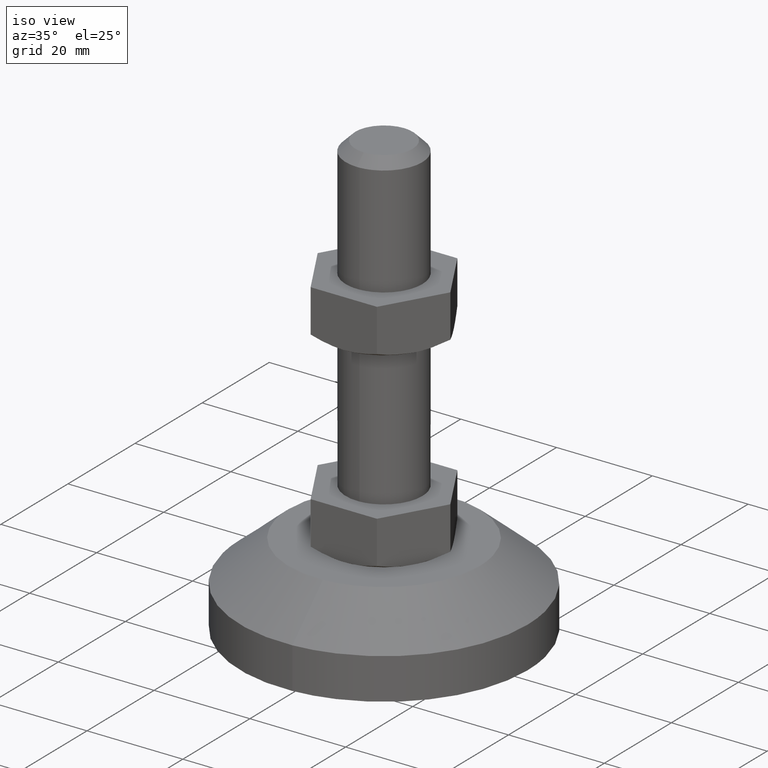
[diagram: clean part render]
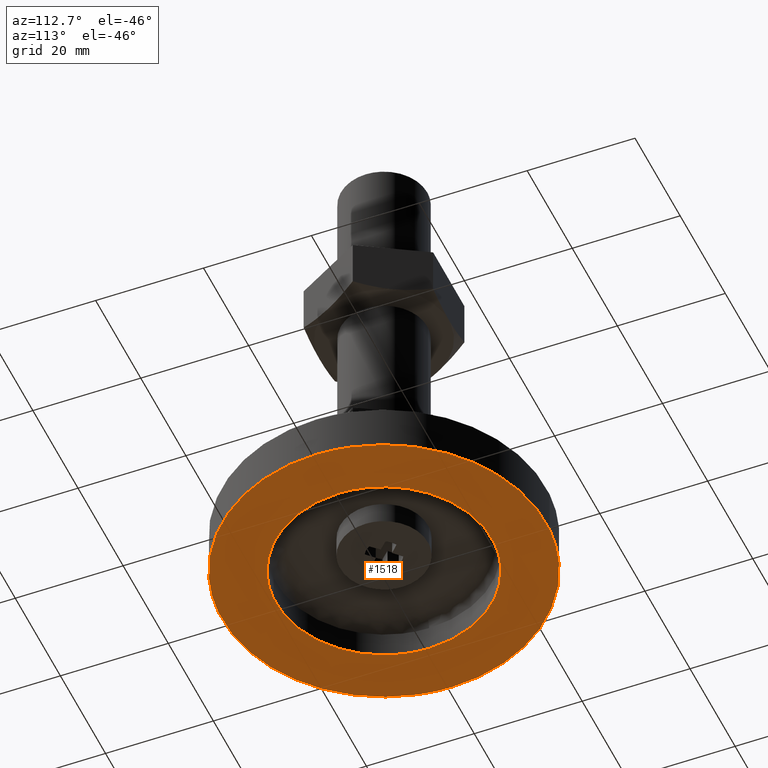
[diagram: tour spotlight — one face highlighted and labeled with its STEP entity id]
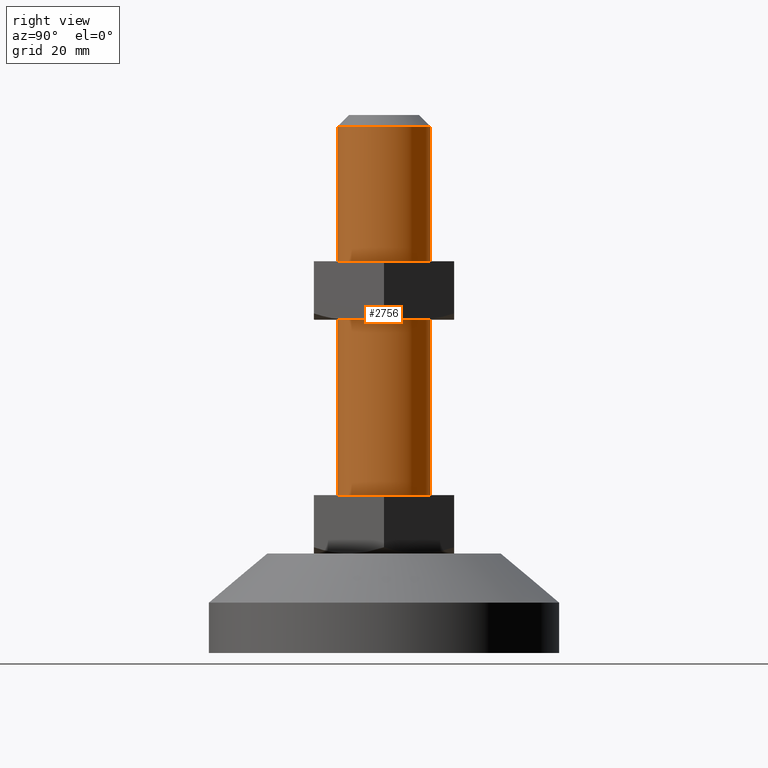
[diagram: tour spotlight — one face highlighted and labeled with its STEP entity id]
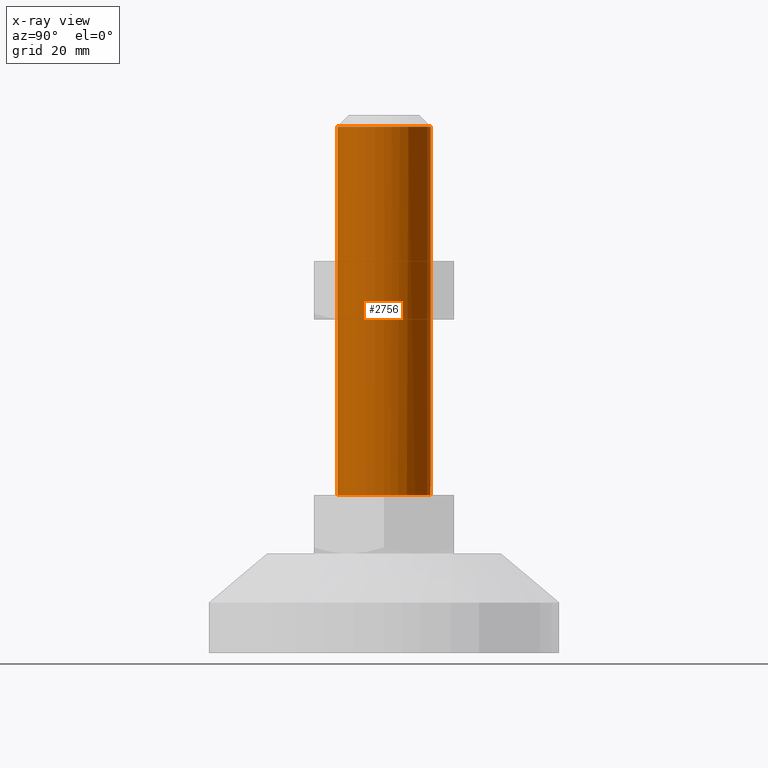
[diagram: x-ray of the same camera — body ghosted, this tour face saturated]
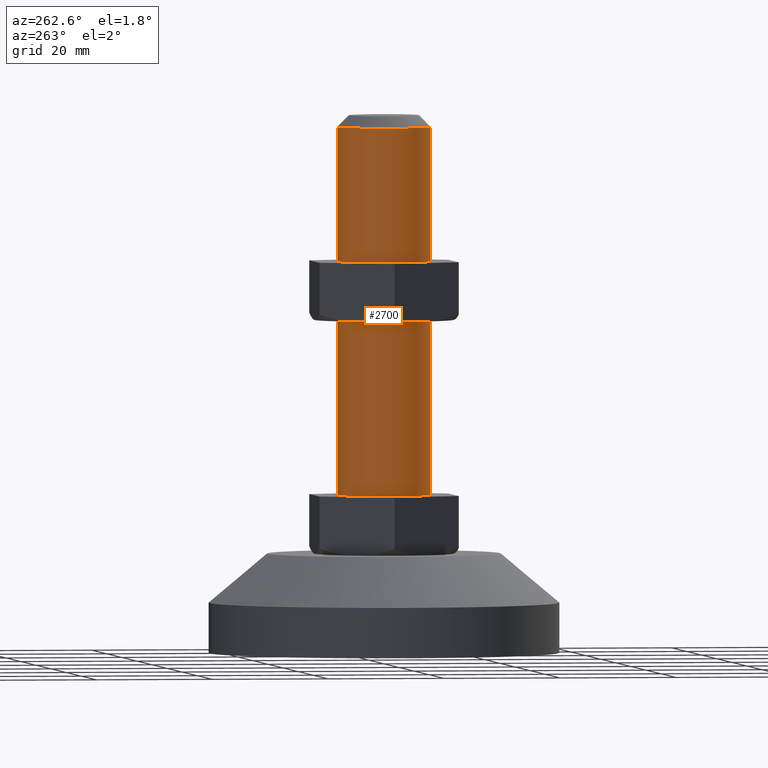
[diagram: tour spotlight — one face highlighted and labeled with its STEP entity id]
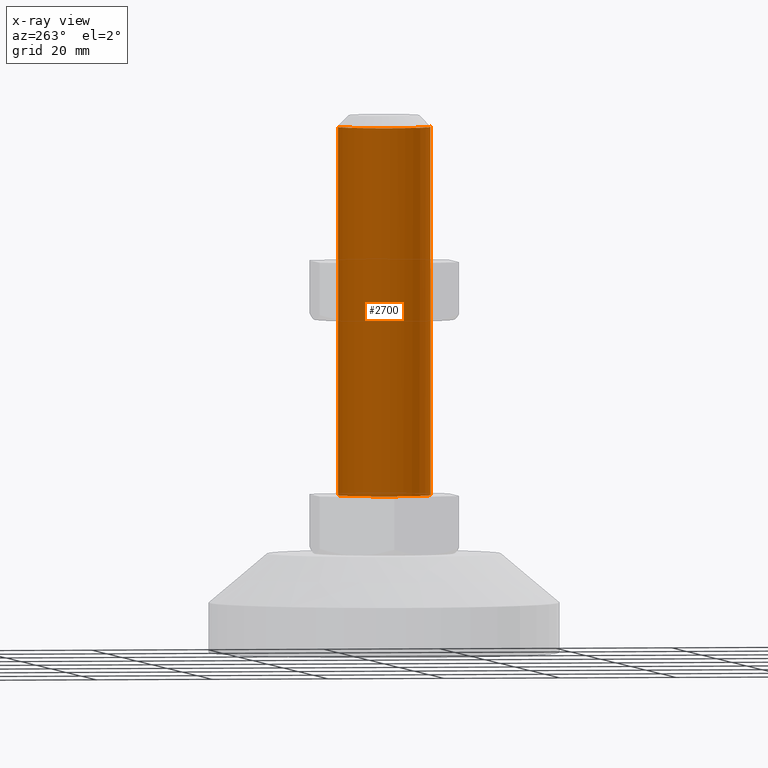
[diagram: x-ray of the same camera — body ghosted, this tour face saturated]
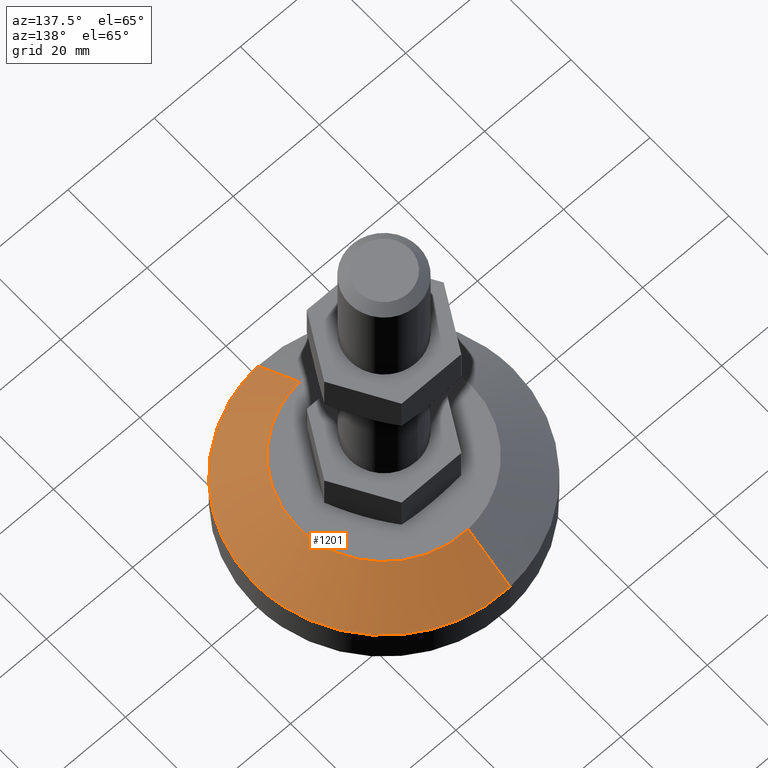
[diagram: tour spotlight — one face highlighted and labeled with its STEP entity id]
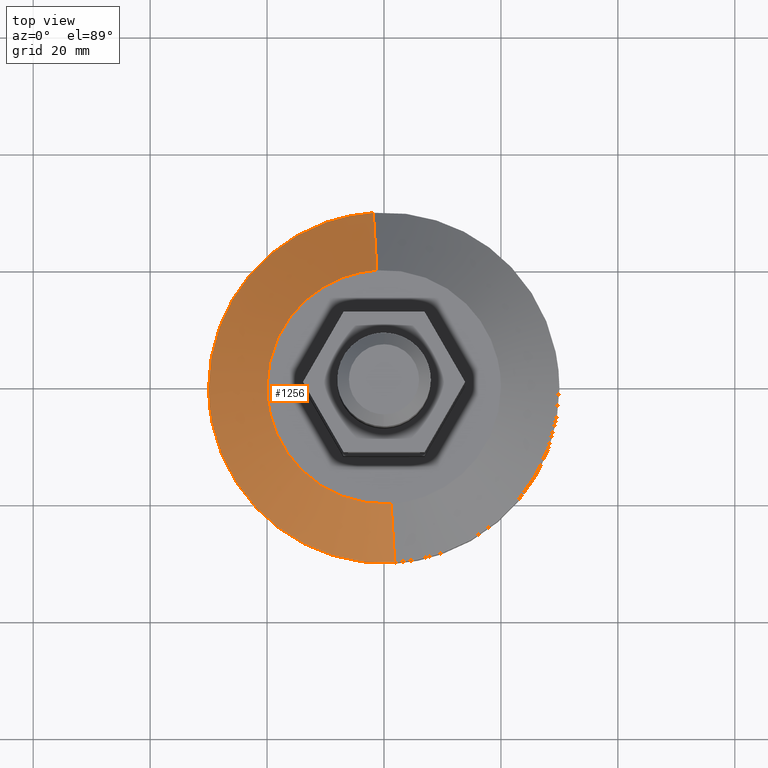
[diagram: tour spotlight — one face highlighted and labeled with its STEP entity id]
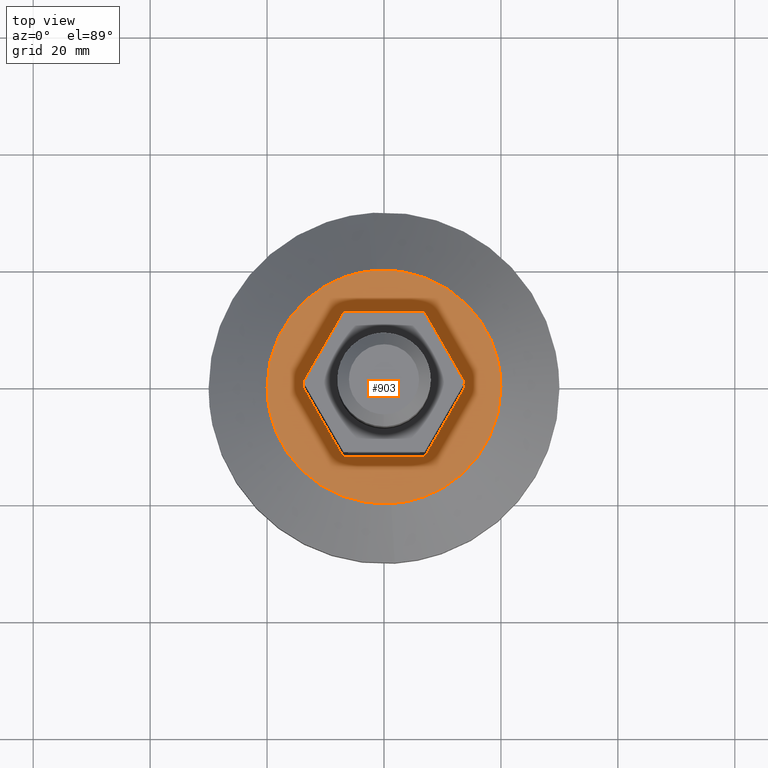
[diagram: tour spotlight — one face highlighted and labeled with its STEP entity id]
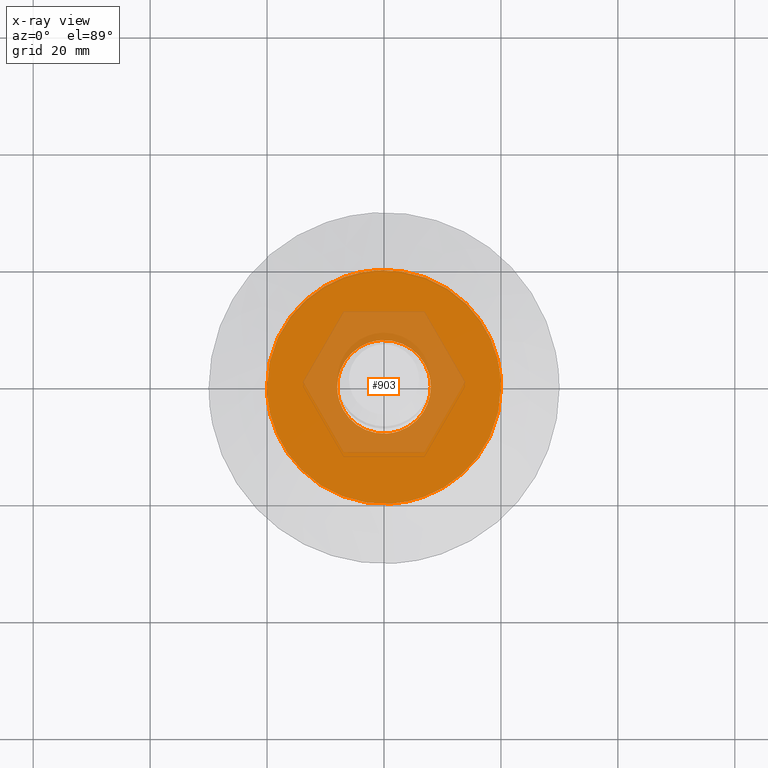
[diagram: x-ray of the same camera — body ghosted, this tour face saturated]
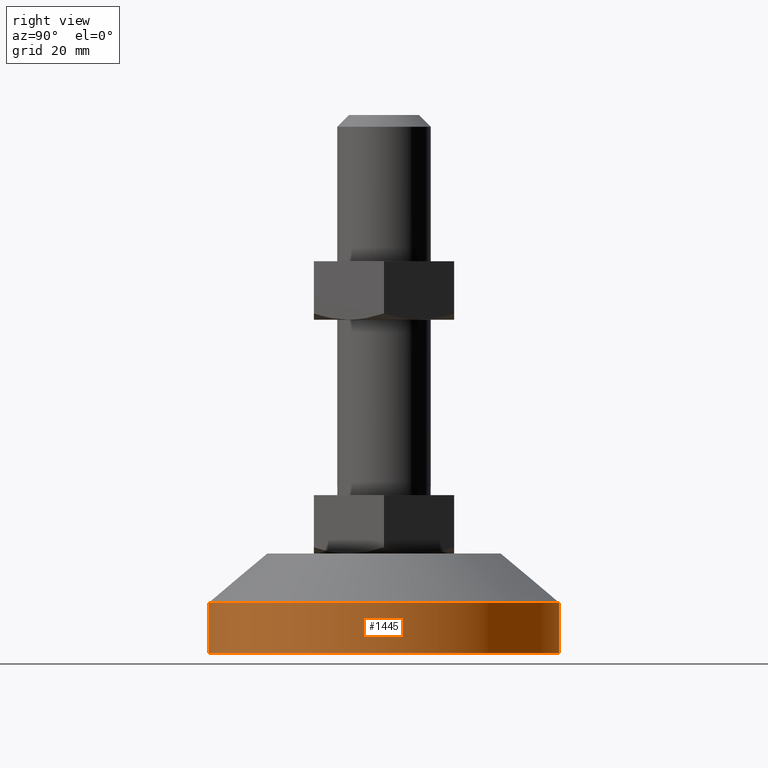
[diagram: tour spotlight — one face highlighted and labeled with its STEP entity id]
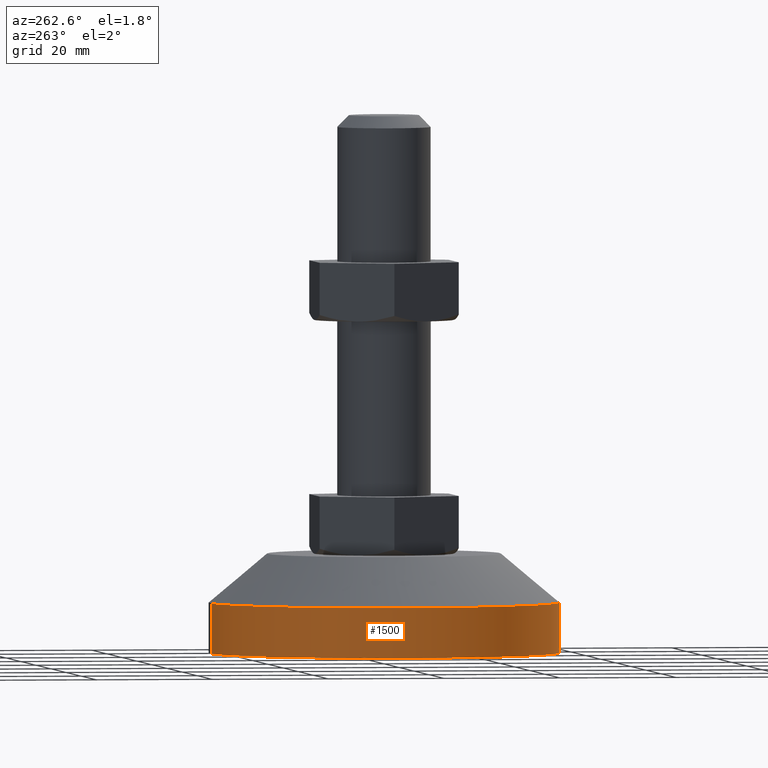
[diagram: tour spotlight — one face highlighted and labeled with its STEP entity id]
A machine part: a face-by-face anatomy tour. The part has 67 B-rep faces; the first image is the clean iso view, then the 8 largest visible faces are spotlighted one at a time (largest first), each with its STEP entity span.

Face 1 — auxiliary view, entity #1518. In plain terms, the highlighted face is a freeform B-spline surface patch.
Definition (entity closure, byte-faithful):
#1276=CARTESIAN_POINT('',(-1.220964780103733,19.962696336059160,-6.938894E-017));
#1277=VERTEX_POINT('',#1276);
#1283=CARTESIAN_POINT('',(20.0,0.0,0.0));
#1284=VERTEX_POINT('',#1283);
#1285=CARTESIAN_POINT('',(-1.220964780103733,19.962696336059157,-6.938894E-017));
#1286=CARTESIAN_POINT('',(-0.611052252248530,19.999999999999098,-6.839178E-017));
#1287=CARTESIAN_POINT('',(5.386542E-014,19.999999999999119,-6.733178E-017));
#1288=CARTESIAN_POINT('',(20.000000000000028,19.999999999999574,-3.263731E-017));
#1289=CARTESIAN_POINT('',(20.0,0.0,0.0));
#1297=(BOUNDED_CURVE()B_SPLINE_CURVE(2,(#1285,#1286,#1287,#1288,#1289),.UNSPECIFIED.,.F.,.U.)B_SPLINE_CURVE_WITH_KNOTS((3,2,3),(0.239333014194302,0.250000000000000,0.500000000000000),.UNSPECIFIED.)CURVE()GEOMETRIC_REPRESENTATION_ITEM()RATIONAL_B_SPLINE_CURVE((0.976072153016967,0.987502848769326,1.0,0.707106781186548,1.0))REPRESENTATION_ITEM(''));
#1298=EDGE_CURVE('',#1277,#1284,#1297,.T.);
#1300=CARTESIAN_POINT('',(1.220964780103731,-19.962696336059160,-6.938894E-017));
#1301=VERTEX_POINT('',#1300);
#1302=CARTESIAN_POINT('',(20.0,0.0,0.0));
#1303=CARTESIAN_POINT('',(19.999999999999968,-18.814127013467427,-3.469447E-017));
#1304=CARTESIAN_POINT('',(1.220964780103731,-19.962696336059157,-6.938894E-017));
#1312=(BOUNDED_CURVE()B_SPLINE_CURVE(2,(#1302,#1303,#1304),.UNSPECIFIED.,.F.,.U.)B_SPLINE_CURVE_WITH_KNOTS((3,3),(0.500000000000000,0.739333014194302),.UNSPECIFIED.)CURVE()GEOMETRIC_REPRESENTATION_ITEM()RATIONAL_B_SPLINE_CURVE((1.0,0.719603932417221,0.976072153016967))REPRESENTATION_ITEM(''));
#1313=EDGE_CURVE('',#1284,#1301,#1312,.T.);
#1345=CARTESIAN_POINT('',(-20.0,0.0,0.0));
#1346=VERTEX_POINT('',#1345);
#1347=CARTESIAN_POINT('',(1.220964780103731,-19.962696336059157,-6.938894E-017));
#1348=CARTESIAN_POINT('',(0.611052252248528,-19.999999999999098,-6.839178E-017));
#1349=CARTESIAN_POINT('',(-5.558912E-014,-19.999999999999119,-6.733178E-017));
#1350=CARTESIAN_POINT('',(-20.000000000000028,-19.999999999999574,-3.263731E-017));
#1351=CARTESIAN_POINT('',(-20.0,0.0,0.0));
#1359=(BOUNDED_CURVE()B_SPLINE_CURVE(2,(#1347,#1348,#1349,#1350,#1351),.UNSPECIFIED.,.F.,.U.)B_SPLINE_CURVE_WITH_KNOTS((3,2,3),(0.739333014194302,0.750000000000000,1.0),.UNSPECIFIED.)CURVE()GEOMETRIC_REPRESENTATION_ITEM()RATIONAL_B_SPLINE_CURVE((0.976072153016967,0.987502848769326,1.0,0.707106781186548,1.0))REPRESENTATION_ITEM(''));
#1360=EDGE_CURVE('',#1301,#1346,#1359,.T.);
#1362=CARTESIAN_POINT('',(-20.0,0.0,0.0));
#1363=CARTESIAN_POINT('',(-19.999999999999968,18.814127013467427,-3.469447E-017));
#1364=CARTESIAN_POINT('',(-1.220964780103733,19.962696336059157,-6.938894E-017));
#1372=(BOUNDED_CURVE()B_SPLINE_CURVE(2,(#1362,#1363,#1364),.UNSPECIFIED.,.F.,.U.)B_SPLINE_CURVE_WITH_KNOTS((3,3),(0.0,0.239333014194302),.UNSPECIFIED.)CURVE()GEOMETRIC_REPRESENTATION_ITEM()RATIONAL_B_SPLINE_CURVE((1.0,0.719603932417221,0.976072153016967))REPRESENTATION_ITEM(''));
#1373=EDGE_CURVE('',#1346,#1277,#1372,.T.);
#1399=CARTESIAN_POINT('',(1.831440223635145,-29.944044928950319,-1.942890E-016));
#1400=VERTEX_POINT('',#1399);
#1406=CARTESIAN_POINT('',(30.0,0.0,0.0));
#1407=VERTEX_POINT('',#1406);
#1408=CARTESIAN_POINT('',(30.0,0.0,0.0));
#1409=CARTESIAN_POINT('',(29.999999999999865,-28.221197079281065,-9.714451E-017));
#1410=CARTESIAN_POINT('',(1.831440223635145,-29.944044928950319,-1.942890E-016));
#1418=(BOUNDED_CURVE()B_SPLINE_CURVE(2,(#1408,#1409,#1410),.UNSPECIFIED.,.F.,.U.)B_SPLINE_CURVE_WITH_KNOTS((3,3),(0.500000000000000,0.739333054222293),.UNSPECIFIED.)CURVE()GEOMETRIC_REPRESENTATION_ITEM()RATIONAL_B_SPLINE_CURVE((1.0,0.719603885521512,0.976072238804626))REPRESENTATION_ITEM(''));
#1419=EDGE_CURVE('',#1407,#1400,#1418,.T.);
#1421=CARTESIAN_POINT('',(-1.831440223635143,29.944044928950319,3.191891E-016));
#1422=VERTEX_POINT('',#1421);
#1423=CARTESIAN_POINT('',(-1.831440223635143,29.944044928950326,3.191891E-016));
#1424=CARTESIAN_POINT('',(-0.916574895373930,29.999999999995804,3.146022E-016));
#1425=CARTESIAN_POINT('',(2.540294E-013,29.999999999995872,3.097262E-016));
#1426=CARTESIAN_POINT('',(30.000000000000121,29.999999999998000,1.501317E-016));
#1427=CARTESIAN_POINT('',(30.0,0.0,0.0));
#1435=(BOUNDED_CURVE()B_SPLINE_CURVE(2,(#1423,#1424,#1425,#1426,#1427),.UNSPECIFIED.,.F.,.U.)B_SPLINE_CURVE_WITH_KNOTS((3,2,3),(0.239333054222293,0.250000000000000,0.500000000000000),.UNSPECIFIED.)CURVE()GEOMETRIC_REPRESENTATION_ITEM()RATIONAL_B_SPLINE_CURVE((0.976072238804626,0.987502895665035,1.0,0.707106781186547,1.0))REPRESENTATION_ITEM(''));
#1436=EDGE_CURVE('',#1422,#1407,#1435,.T.);
#1466=CARTESIAN_POINT('',(-30.0,0.0,0.0));
#1467=VERTEX_POINT('',#1466);
#1468=CARTESIAN_POINT('',(-30.0,0.0,0.0));
#1469=CARTESIAN_POINT('',(-29.999999999999865,28.221197079281065,1.595946E-016));
#1470=CARTESIAN_POINT('',(-1.831440223635143,29.944044928950326,3.191891E-016));
#1478=(BOUNDED_CURVE()B_SPLINE_CURVE(2,(#1468,#1469,#1470),.UNSPECIFIED.,.F.,.U.)B_SPLINE_CURVE_WITH_KNOTS((3,3),(0.0,0.239333054222293),.UNSPECIFIED.)CURVE()GEOMETRIC_REPRESENTATION_ITEM()RATIONAL_B_SPLINE_CURVE((1.0,0.719603885521512,0.976072238804626))REPRESENTATION_ITEM(''));
#1479=EDGE_CURVE('',#1467,#1422,#1478,.T.);
#1481=CARTESIAN_POINT('',(1.831440223635145,-29.944044928950319,-1.942890E-016));
#1482=CARTESIAN_POINT('',(0.916574895373929,-29.999999999995804,-1.914970E-016));
#1483=CARTESIAN_POINT('',(-2.568304E-013,-29.999999999995872,-1.885290E-016));
#1484=CARTESIAN_POINT('',(-30.000000000000121,-29.999999999998000,-9.138448E-017));
#1485=CARTESIAN_POINT('',(-30.0,0.0,0.0));
#1493=(BOUNDED_CURVE()B_SPLINE_CURVE(2,(#1481,#1482,#1483,#1484,#1485),.UNSPECIFIED.,.F.,.U.)B_SPLINE_CURVE_WITH_KNOTS((3,2,3),(0.739333054222293,0.750000000000000,1.0),.UNSPECIFIED.)CURVE()GEOMETRIC_REPRESENTATION_ITEM()RATIONAL_B_SPLINE_CURVE((0.976072238804626,0.987502895665035,1.0,0.707106781186547,1.0))REPRESENTATION_ITEM(''));
#1494=EDGE_CURVE('',#1400,#1467,#1493,.T.);
#1501=CARTESIAN_POINT('',(-32.996999883708362,-32.996261619275792,0.0));
#1502=CARTESIAN_POINT('',(32.997001493033771,-32.996261619275792,0.0));
#1503=CARTESIAN_POINT('',(-32.996999883708362,32.996260546392179,0.0));
#1504=CARTESIAN_POINT('',(32.997001493033771,32.996260546392179,0.0));
#1505=B_SPLINE_SURFACE_WITH_KNOTS('',1,1,((#1501,#1503),(#1502,#1504)),.UNSPECIFIED.,.F.,.F.,.U.,(2,2),(2,2),(0.0,65.994001376742119),(0.0,65.992522165667964),.UNSPECIFIED.);
#1506=ORIENTED_EDGE('',*,*,#1479,.T.);
#1507=ORIENTED_EDGE('',*,*,#1436,.T.);
#1508=ORIENTED_EDGE('',*,*,#1419,.T.);
#1509=ORIENTED_EDGE('',*,*,#1494,.T.);
#1510=EDGE_LOOP('',(#1506,#1507,#1508,#1509));
#1511=FACE_OUTER_BOUND('',#1510,.T.);
#1512=ORIENTED_EDGE('',*,*,#1313,.F.);
#1513=ORIENTED_EDGE('',*,*,#1298,.F.);
#1514=ORIENTED_EDGE('',*,*,#1373,.F.);
#1515=ORIENTED_EDGE('',*,*,#1360,.F.);
#1516=EDGE_LOOP('',(#1512,#1513,#1514,#1515));
#1517=FACE_BOUND('',#1516,.T.);
#1518=ADVANCED_FACE('',(#1511,#1517),#1505,.F.);

Face 2 — right view, entity #2756. An x-ray twin of the same camera follows (body ghosted, this face saturated) — the face is partly hidden behind the body. In plain terms, the highlighted face is a freeform B-spline surface patch.
Definition (entity closure, byte-faithful):
#2539=CARTESIAN_POINT('',(0.069812284496149,7.999695384574755,89.999999999931788));
#2540=VERTEX_POINT('',#2539);
#2546=CARTESIAN_POINT('',(-0.488379432670811,7.985078930709759,90.0));
#2547=VERTEX_POINT('',#2546);
#2548=CARTESIAN_POINT('',(-0.488379432670811,7.985078930709759,90.0));
#2549=CARTESIAN_POINT('',(-0.302561884388627,7.996444371469745,89.999999999977135));
#2550=CARTESIAN_POINT('',(-0.116345268610556,8.001320712760094,89.999999999954738));
#2551=CARTESIAN_POINT('',(0.069812284496149,7.999695384574755,89.999999999931788));
#2552=B_SPLINE_CURVE_WITH_KNOTS('',3,(#2548,#2549,#2550,#2551),.UNSPECIFIED.,.F.,.U.,(4,4),(8.862366E-011,0.558498232983470),.UNSPECIFIED.);
#2553=EDGE_CURVE('',#2547,#2540,#2552,.T.);
#2589=CARTESIAN_POINT('',(0.488379432670811,-7.985078930709759,90.0));
#2590=VERTEX_POINT('',#2589);
#2598=CARTESIAN_POINT('',(8.0,0.0,90.0));
#2599=VERTEX_POINT('',#2598);
#2600=CARTESIAN_POINT('',(8.0,0.0,90.0));
#2601=CARTESIAN_POINT('',(7.999999999999849,-7.525656923372798,90.0));
#2602=CARTESIAN_POINT('',(0.488379432670811,-7.985078930709758,90.0));
#2610=(BOUNDED_CURVE()B_SPLINE_CURVE(2,(#2600,#2601,#2602),.UNSPECIFIED.,.F.,.U.)B_SPLINE_CURVE_WITH_KNOTS((3,3),(0.0,0.239333154204801),.UNSPECIFIED.)CURVE()GEOMETRIC_REPRESENTATION_ITEM()RATIONAL_B_SPLINE_CURVE((1.0,0.719603768384717,0.976072453086440))REPRESENTATION_ITEM(''));
#2611=EDGE_CURVE('',#2599,#2590,#2610,.T.);
#2613=CARTESIAN_POINT('',(0.069812284496149,7.999695384574755,89.999999999931788));
#2614=CARTESIAN_POINT('',(8.000000000000453,7.930489684288950,89.999999999965908));
#2615=CARTESIAN_POINT('',(8.0,0.0,90.0));
#2623=(BOUNDED_CURVE()B_SPLINE_CURVE(2,(#2613,#2614,#2615),.UNSPECIFIED.,.F.,.U.)B_SPLINE_CURVE_WITH_KNOTS((3,3),(0.751539894346178,1.0),.UNSPECIFIED.)CURVE()GEOMETRIC_REPRESENTATION_ITEM()RATIONAL_B_SPLINE_CURVE((0.996414028074507,0.708910879633286,1.0))REPRESENTATION_ITEM(''));
#2624=EDGE_CURVE('',#2540,#2599,#2623,.T.);
#2651=CARTESIAN_POINT('',(0.488379321904149,-7.985078937484289,27.000000000000021));
#2652=VERTEX_POINT('',#2651);
#2670=CARTESIAN_POINT('',(0.488379432670811,-7.985078930709759,90.0));
#2671=CARTESIAN_POINT('',(0.488379321904149,-7.985078937484289,27.000000000000021));
#2672=QUASI_UNIFORM_CURVE('',1,(#2670,#2671),.UNSPECIFIED.,.F.,.U.);
#2673=EDGE_CURVE('',#2590,#2652,#2672,.T.);
#2678=CARTESIAN_POINT('',(-0.488379321904150,7.985078937484289,27.000000000000011));
#2679=VERTEX_POINT('',#2678);
#2680=CARTESIAN_POINT('',(-0.488379432670811,7.985078930709759,90.0));
#2681=CARTESIAN_POINT('',(-0.488379321904150,7.985078937484289,27.000000000000011));
#2682=QUASI_UNIFORM_CURVE('',1,(#2680,#2681),.UNSPECIFIED.,.F.,.U.);
#2683=EDGE_CURVE('',#2547,#2679,#2682,.T.);
#2701=CARTESIAN_POINT('',(-0.488388316278856,7.985078387374934,91.575000000000017));
#2702=CARTESIAN_POINT('',(7.496690071096078,8.473466703653790,91.575000000000017));
#2703=CARTESIAN_POINT('',(7.985078387374934,0.488388316278856,91.575000000000017));
#2704=CARTESIAN_POINT('',(8.473466703653790,-7.496690071096078,91.575000000000017));
#2705=CARTESIAN_POINT('',(0.488388316278856,-7.985078387374934,91.575000000000017));
#2706=CARTESIAN_POINT('',(-0.488388316278856,7.985078387374934,25.385624999999990));
#2707=CARTESIAN_POINT('',(7.496690071096078,8.473466703653790,25.385624999999994));
#2708=CARTESIAN_POINT('',(7.985078387374934,0.488388316278856,25.385624999999990));
#2709=CARTESIAN_POINT('',(8.473466703653790,-7.496690071096078,25.385624999999994));
#2710=CARTESIAN_POINT('',(0.488388316278856,-7.985078387374934,25.385624999999990));
#2718=(BOUNDED_SURFACE()B_SPLINE_SURFACE(2,1,((#2701,#2706),(#2702,#2707),(#2703,#2708),(#2704,#2709),(#2705,#2710)),.UNSPECIFIED.,.F.,.F.,.U.)B_SPLINE_SURFACE_WITH_KNOTS((3,2,3),(2,2),(0.0,13.254833995939039,26.509667991878072),(0.0,66.189375000000027),.UNSPECIFIED.)GEOMETRIC_REPRESENTATION_ITEM()RATIONAL_B_SPLINE_SURFACE(((1.0,1.0),(0.707106781186548,0.707106781186548),(1.0,1.0),(0.707106781186548,0.707106781186548),(1.0,1.0)))REPRESENTATION_ITEM('')SURFACE());
#2719=CARTESIAN_POINT('',(8.0,0.0,27.0));
#2720=VERTEX_POINT('',#2719);
#2721=CARTESIAN_POINT('',(8.0,0.0,27.0));
#2722=CARTESIAN_POINT('',(7.999999999999846,-7.525657027961497,27.000000000000018));
#2723=CARTESIAN_POINT('',(0.488379321904149,-7.985078937484289,27.000000000000021));
#2731=(BOUNDED_CURVE()B_SPLINE_CURVE(2,(#2721,#2722,#2723),.UNSPECIFIED.,.F.,.U.)B_SPLINE_CURVE_WITH_KNOTS((3,3),(0.0,0.239333156598320),.UNSPECIFIED.)CURVE()GEOMETRIC_REPRESENTATION_ITEM()RATIONAL_B_SPLINE_CURVE((1.0,0.719603765580535,0.976072458216215))REPRESENTATION_ITEM(''));
#2732=EDGE_CURVE('',#2720,#2652,#2731,.T.);
#2733=ORIENTED_EDGE('',*,*,#2732,.F.);
#2734=CARTESIAN_POINT('',(-0.488379321904150,7.985078937484289,27.000000000000011));
#2735=CARTESIAN_POINT('',(-0.244417596591766,7.999999999995006,27.000000000000011));
#2736=CARTESIAN_POINT('',(2.996535E-013,7.999999999995083,27.000000000000011));
#2737=CARTESIAN_POINT('',(8.000000000000146,7.999999999997617,27.000000000000011));
#2738=CARTESIAN_POINT('',(8.0,0.0,27.0));
#2746=(BOUNDED_CURVE()B_SPLINE_CURVE(2,(#2734,#2735,#2736,#2737,#2738),.UNSPECIFIED.,.F.,.U.)B_SPLINE_CURVE_WITH_KNOTS((3,2,3),(0.739333156598320,0.750000000000000,1.0),.UNSPECIFIED.)CURVE()GEOMETRIC_REPRESENTATION_ITEM()RATIONAL_B_SPLINE_CURVE((0.976072458216215,0.987503015606012,1.0,0.707106781186548,1.0))REPRESENTATION_ITEM(''));
#2747=EDGE_CURVE('',#2679,#2720,#2746,.T.);
#2748=ORIENTED_EDGE('',*,*,#2747,.F.);
#2749=ORIENTED_EDGE('',*,*,#2683,.F.);
#2750=ORIENTED_EDGE('',*,*,#2553,.T.);
#2751=ORIENTED_EDGE('',*,*,#2624,.T.);
#2752=ORIENTED_EDGE('',*,*,#2611,.T.);
#2753=ORIENTED_EDGE('',*,*,#2673,.T.);
#2754=EDGE_LOOP('',(#2733,#2748,#2749,#2750,#2751,#2752,#2753));
#2755=FACE_OUTER_BOUND('',#2754,.T.);
#2756=ADVANCED_FACE('',(#2755),#2718,.T.);

Face 3 — auxiliary view, entity #2700. An x-ray twin of the same camera follows (body ghosted, this face saturated) — the face is partly hidden behind the body. In plain terms, the highlighted face is a freeform B-spline surface patch.
Definition (entity closure, byte-faithful):
#2515=CARTESIAN_POINT('',(-0.069812284496150,-7.999695384574759,89.999999999931788));
#2516=VERTEX_POINT('',#2515);
#2517=CARTESIAN_POINT('',(-8.0,0.0,90.0));
#2518=VERTEX_POINT('',#2517);
#2519=CARTESIAN_POINT('',(-0.069812284496150,-7.999695384574759,89.999999999931788));
#2520=CARTESIAN_POINT('',(-8.000000000000451,-7.930489684288947,89.999999999965866));
#2521=CARTESIAN_POINT('',(-8.0,0.0,90.0));
#2529=(BOUNDED_CURVE()B_SPLINE_CURVE(2,(#2519,#2520,#2521),.UNSPECIFIED.,.F.,.U.)B_SPLINE_CURVE_WITH_KNOTS((3,3),(0.251539894346178,0.500000000000000),.UNSPECIFIED.)CURVE()GEOMETRIC_REPRESENTATION_ITEM()RATIONAL_B_SPLINE_CURVE((0.996414028074507,0.708910879633287,1.0))REPRESENTATION_ITEM(''));
#2530=EDGE_CURVE('',#2516,#2518,#2529,.T.);
#2546=CARTESIAN_POINT('',(-0.488379432670811,7.985078930709759,90.0));
#2547=VERTEX_POINT('',#2546);
#2555=CARTESIAN_POINT('',(-8.0,0.0,90.0));
#2556=CARTESIAN_POINT('',(-7.999999999999849,7.525656923372800,89.999999999999986));
#2557=CARTESIAN_POINT('',(-0.488379432670810,7.985078930709758,90.0));
#2565=(BOUNDED_CURVE()B_SPLINE_CURVE(2,(#2555,#2556,#2557),.UNSPECIFIED.,.F.,.U.)B_SPLINE_CURVE_WITH_KNOTS((3,3),(0.500000000000000,0.739333154204801),.UNSPECIFIED.)CURVE()GEOMETRIC_REPRESENTATION_ITEM()RATIONAL_B_SPLINE_CURVE((1.0,0.719603768384717,0.976072453086440))REPRESENTATION_ITEM(''));
#2566=EDGE_CURVE('',#2518,#2547,#2565,.T.);
#2589=CARTESIAN_POINT('',(0.488379432670811,-7.985078930709759,90.0));
#2590=VERTEX_POINT('',#2589);
#2591=CARTESIAN_POINT('',(0.488379432670811,-7.985078930709759,90.0));
#2592=CARTESIAN_POINT('',(0.302561631399022,-7.996444516734597,89.999999999977376));
#2593=CARTESIAN_POINT('',(0.116345369862770,-8.001320671141436,89.999999999954312));
#2594=CARTESIAN_POINT('',(-0.069812284496150,-7.999695384574759,89.999999999931788));
#2595=B_SPLINE_CURVE_WITH_KNOTS('',3,(#2591,#2592,#2593,#2594),.UNSPECIFIED.,.F.,.U.,(4,4),(8.862511E-011,0.558498232983472),.UNSPECIFIED.);
#2596=EDGE_CURVE('',#2590,#2516,#2595,.T.);
#2633=CARTESIAN_POINT('',(0.488388316278856,-7.985078387374934,91.575000000000017));
#2634=CARTESIAN_POINT('',(-7.496690071096078,-8.473466703653790,91.575000000000017));
#2635=CARTESIAN_POINT('',(-7.985078387374934,-0.488388316278856,91.575000000000017));
#2636=CARTESIAN_POINT('',(-8.473466703653790,7.496690071096078,91.575000000000017));
#2637=CARTESIAN_POINT('',(-0.488388316278856,7.985078387374934,91.575000000000017));
#2638=CARTESIAN_POINT('',(0.488388316278856,-7.985078387374934,25.385624999999990));
#2639=CARTESIAN_POINT('',(-7.496690071096078,-8.473466703653790,25.385624999999994));
#2640=CARTESIAN_POINT('',(-7.985078387374934,-0.488388316278856,25.385624999999990));
#2641=CARTESIAN_POINT('',(-8.473466703653790,7.496690071096078,25.385624999999994));
#2642=CARTESIAN_POINT('',(-0.488388316278856,7.985078387374934,25.385624999999990));
#2650=(BOUNDED_SURFACE()B_SPLINE_SURFACE(2,1,((#2633,#2638),(#2634,#2639),(#2635,#2640),(#2636,#2641),(#2637,#2642)),.UNSPECIFIED.,.F.,.F.,.U.)B_SPLINE_SURFACE_WITH_KNOTS((3,2,3),(2,2),(0.0,13.254833995939039,26.509667991878072),(0.0,66.189375000000027),.UNSPECIFIED.)GEOMETRIC_REPRESENTATION_ITEM()RATIONAL_B_SPLINE_SURFACE(((1.0,1.0),(0.707106781186548,0.707106781186548),(1.0,1.0),(0.707106781186548,0.707106781186548),(1.0,1.0)))REPRESENTATION_ITEM('')SURFACE());
#2651=CARTESIAN_POINT('',(0.488379321904149,-7.985078937484289,27.000000000000021));
#2652=VERTEX_POINT('',#2651);
#2653=CARTESIAN_POINT('',(-8.0,0.0,27.0));
#2654=VERTEX_POINT('',#2653);
#2655=CARTESIAN_POINT('',(0.488379321904149,-7.985078937484289,27.000000000000021));
#2656=CARTESIAN_POINT('',(0.244417596591765,-7.999999999995006,27.000000000000011));
#2657=CARTESIAN_POINT('',(-3.005692E-013,-7.999999999995083,27.000000000000021));
#2658=CARTESIAN_POINT('',(-8.000000000000146,-7.999999999997617,27.000000000000011));
#2659=CARTESIAN_POINT('',(-8.0,0.0,27.0));
#2667=(BOUNDED_CURVE()B_SPLINE_CURVE(2,(#2655,#2656,#2657,#2658,#2659),.UNSPECIFIED.,.F.,.U.)B_SPLINE_CURVE_WITH_KNOTS((3,2,3),(0.239333156598320,0.250000000000000,0.500000000000000),.UNSPECIFIED.)CURVE()GEOMETRIC_REPRESENTATION_ITEM()RATIONAL_B_SPLINE_CURVE((0.976072458216215,0.987503015606012,1.0,0.707106781186548,1.0))REPRESENTATION_ITEM(''));
#2668=EDGE_CURVE('',#2652,#2654,#2667,.T.);
#2669=ORIENTED_EDGE('',*,*,#2668,.F.);
#2670=CARTESIAN_POINT('',(0.488379432670811,-7.985078930709759,90.0));
#2671=CARTESIAN_POINT('',(0.488379321904149,-7.985078937484289,27.000000000000021));
#2672=QUASI_UNIFORM_CURVE('',1,(#2670,#2671),.UNSPECIFIED.,.F.,.U.);
#2673=EDGE_CURVE('',#2590,#2652,#2672,.T.);
#2674=ORIENTED_EDGE('',*,*,#2673,.F.);
#2675=ORIENTED_EDGE('',*,*,#2596,.T.);
#2676=ORIENTED_EDGE('',*,*,#2530,.T.);
#2677=ORIENTED_EDGE('',*,*,#2566,.T.);
#2678=CARTESIAN_POINT('',(-0.488379321904150,7.985078937484289,27.000000000000011));
#2679=VERTEX_POINT('',#2678);
#2680=CARTESIAN_POINT('',(-0.488379432670811,7.985078930709759,90.0));
#2681=CARTESIAN_POINT('',(-0.488379321904150,7.985078937484289,27.000000000000011));
#2682=QUASI_UNIFORM_CURVE('',1,(#2680,#2681),.UNSPECIFIED.,.F.,.U.);
#2683=EDGE_CURVE('',#2547,#2679,#2682,.T.);
#2684=ORIENTED_EDGE('',*,*,#2683,.T.);
#2685=CARTESIAN_POINT('',(-8.0,0.0,27.0));
#2686=CARTESIAN_POINT('',(-7.999999999999846,7.525657027961497,27.000000000000004));
#2687=CARTESIAN_POINT('',(-0.488379321904150,7.985078937484289,27.000000000000011));
#2695=(BOUNDED_CURVE()B_SPLINE_CURVE(2,(#2685,#2686,#2687),.UNSPECIFIED.,.F.,.U.)B_SPLINE_CURVE_WITH_KNOTS((3,3),(0.500000000000000,0.739333156598320),.UNSPECIFIED.)CURVE()GEOMETRIC_REPRESENTATION_ITEM()RATIONAL_B_SPLINE_CURVE((1.0,0.719603765580535,0.976072458216215))REPRESENTATION_ITEM(''));
#2696=EDGE_CURVE('',#2654,#2679,#2695,.T.);
#2697=ORIENTED_EDGE('',*,*,#2696,.F.);
#2698=EDGE_LOOP('',(#2669,#2674,#2675,#2676,#2677,#2684,#2697));
#2699=FACE_OUTER_BOUND('',#2698,.T.);
#2700=ADVANCED_FACE('',(#2699),#2650,.T.);

Face 4 — auxiliary view, entity #1201. In plain terms, the highlighted face is a freeform B-spline surface patch.
Definition (entity closure, byte-faithful):
#831=CARTESIAN_POINT('',(1.220970790704826,-19.962695968437920,16.999999999999119));
#832=VERTEX_POINT('',#831);
#850=CARTESIAN_POINT('',(20.0,0.0,17.0));
#851=VERTEX_POINT('',#850);
#852=CARTESIAN_POINT('',(20.0,0.0,17.0));
#853=CARTESIAN_POINT('',(20.000000000000028,-18.814121338107224,16.999999999999552));
#854=CARTESIAN_POINT('',(1.220970790704826,-19.962695968437917,16.999999999999122));
#862=(BOUNDED_CURVE()B_SPLINE_CURVE(2,(#852,#853,#854),.UNSPECIFIED.,.F.,.U.)B_SPLINE_CURVE_WITH_KNOTS((3,3),(0.500000000000000,0.739332962241902),.UNSPECIFIED.)CURVE()GEOMETRIC_REPRESENTATION_ITEM()RATIONAL_B_SPLINE_CURVE((1.0,0.719603993283243,0.976072041673060))REPRESENTATION_ITEM(''));
#863=EDGE_CURVE('',#851,#832,#862,.T.);
#865=CARTESIAN_POINT('',(-1.220970790704824,19.962695968437931,16.999999999999108));
#866=VERTEX_POINT('',#865);
#867=CARTESIAN_POINT('',(-1.220970790704823,19.962695968437924,16.999999999999108));
#868=CARTESIAN_POINT('',(-0.611055265975662,20.000000000001037,16.999999999999130));
#869=CARTESIAN_POINT('',(-6.205296E-014,20.000000000001020,16.999999999999140));
#870=CARTESIAN_POINT('',(19.999999999999968,20.000000000000490,16.999999999999577));
#871=CARTESIAN_POINT('',(20.0,0.0,17.0));
#879=(BOUNDED_CURVE()B_SPLINE_CURVE(2,(#867,#868,#869,#870,#871),.UNSPECIFIED.,.F.,.U.)B_SPLINE_CURVE_WITH_KNOTS((3,2,3),(0.239332962241902,0.250000000000000,0.500000000000000),.UNSPECIFIED.)CURVE()GEOMETRIC_REPRESENTATION_ITEM()RATIONAL_B_SPLINE_CURVE((0.976072041673061,0.987502787903305,1.0,0.707106781186548,1.0))REPRESENTATION_ITEM(''));
#880=EDGE_CURVE('',#866,#851,#879,.T.);
#1135=CARTESIAN_POINT('',(-1.205708655813425,19.713162268831869,17.209774899999999));
#1136=CARTESIAN_POINT('',(18.507453613018441,20.918870924645290,17.209774900000003));
#1137=CARTESIAN_POINT('',(19.713162268831869,1.205708655813425,17.209774899999999));
#1138=CARTESIAN_POINT('',(20.918870924645290,-18.507453613018441,17.209774900000003));
#1139=CARTESIAN_POINT('',(1.205708655813425,-19.713162268831869,17.209774899999999));
#1140=CARTESIAN_POINT('',(-1.847099874301517,30.199815994751610,8.393984727500000));
#1141=CARTESIAN_POINT('',(28.352716120450090,32.046915869053130,8.393984727500000));
#1142=CARTESIAN_POINT('',(30.199815994751610,1.847099874301517,8.393984727500000));
#1143=CARTESIAN_POINT('',(32.046915869053130,-28.352716120450090,8.393984727500000));
#1144=CARTESIAN_POINT('',(1.847099874301517,-30.199815994751610,8.393984727500000));
#1152=(BOUNDED_SURFACE()B_SPLINE_SURFACE(2,1,((#1135,#1140),(#1136,#1141),(#1137,#1142),(#1138,#1143),(#1139,#1144)),.UNSPECIFIED.,.F.,.F.,.U.)B_SPLINE_SURFACE_WITH_KNOTS((3,2,3),(2,2),(0.0,50.130196386203821,100.260392772407600),(0.0,13.714935122998130),.UNSPECIFIED.)GEOMETRIC_REPRESENTATION_ITEM()RATIONAL_B_SPLINE_SURFACE(((1.0,1.0),(0.707106781186548,0.707106781186548),(1.0,1.0),(0.707106781186548,0.707106781186548),(1.0,1.0)))REPRESENTATION_ITEM('')SURFACE());
#1153=CARTESIAN_POINT('',(-1.831448106525988,29.944044431940512,8.609004012459000));
#1154=VERTEX_POINT('',#1153);
#1155=CARTESIAN_POINT('',(-1.220970790704824,19.962695968437931,16.999999999999108));
#1156=CARTESIAN_POINT('',(-1.831448106525988,29.944044431940512,8.609004012459000));
#1157=QUASI_UNIFORM_CURVE('',1,(#1155,#1156),.UNSPECIFIED.,.F.,.U.);
#1158=EDGE_CURVE('',#866,#1154,#1157,.T.);
#1159=ORIENTED_EDGE('',*,*,#1158,.F.);
#1160=ORIENTED_EDGE('',*,*,#880,.T.);
#1161=ORIENTED_EDGE('',*,*,#863,.T.);
#1162=CARTESIAN_POINT('',(1.831448106525988,-29.944044431940512,8.609004012459000));
#1163=VERTEX_POINT('',#1162);
#1164=CARTESIAN_POINT('',(1.220970790704826,-19.962695968437920,16.999999999999119));
#1165=CARTESIAN_POINT('',(1.831448106525988,-29.944044431940512,8.609004012459000));
#1166=QUASI_UNIFORM_CURVE('',1,(#1164,#1165),.UNSPECIFIED.,.F.,.U.);
#1167=EDGE_CURVE('',#832,#1163,#1166,.T.);
#1168=ORIENTED_EDGE('',*,*,#1167,.T.);
#1169=CARTESIAN_POINT('',(30.0,0.0,8.609004000000001));
#1170=VERTEX_POINT('',#1169);
#1171=CARTESIAN_POINT('',(30.0,0.0,8.609004000000001));
#1172=CARTESIAN_POINT('',(30.000004038853284,-28.221197008768726,8.609004006229501));
#1173=CARTESIAN_POINT('',(1.831448106525987,-29.944044431940512,8.609004012459000));
#1181=(BOUNDED_CURVE()B_SPLINE_CURVE(2,(#1171,#1172,#1173),.UNSPECIFIED.,.F.,.U.)B_SPLINE_CURVE_WITH_KNOTS((3,3),(0.500000000000000,0.739333055344883),.UNSPECIFIED.)CURVE()GEOMETRIC_REPRESENTATION_ITEM()RATIONAL_B_SPLINE_CURVE((1.0,0.719603884206316,0.976072241210552))REPRESENTATION_ITEM(''));
#1182=EDGE_CURVE('',#1170,#1163,#1181,.T.);
#1183=ORIENTED_EDGE('',*,*,#1182,.F.);
#1184=CARTESIAN_POINT('',(-1.831448106525987,29.944044431940508,8.609004012459000));
#1185=CARTESIAN_POINT('',(-0.916582759319239,29.999999498384135,8.609004012279959));
#1186=CARTESIAN_POINT('',(-0.000007838229124,29.999999506158670,8.609004012089631));
#1187=CARTESIAN_POINT('',(29.999996200624157,29.999999760623375,8.609004005860133));
#1188=CARTESIAN_POINT('',(30.0,0.0,8.609004000000001));
#1196=(BOUNDED_CURVE()B_SPLINE_CURVE(2,(#1184,#1185,#1186,#1187,#1188),.UNSPECIFIED.,.F.,.U.)B_SPLINE_CURVE_WITH_KNOTS((3,2,3),(0.239333055344883,0.250000000000000,0.500000000000000),.UNSPECIFIED.)CURVE()GEOMETRIC_REPRESENTATION_ITEM()RATIONAL_B_SPLINE_CURVE((0.976072241210552,0.987502896980231,1.0,0.707106781186547,1.0))REPRESENTATION_ITEM(''));
#1197=EDGE_CURVE('',#1154,#1170,#1196,.T.);
#1198=ORIENTED_EDGE('',*,*,#1197,.F.);
#1199=EDGE_LOOP('',(#1159,#1160,#1161,#1168,#1183,#1198));
#1200=FACE_OUTER_BOUND('',#1199,.T.);
#1201=ADVANCED_FACE('',(#1200),#1152,.T.);

Face 5 — top view, entity #1256. In plain terms, the highlighted face is a freeform B-spline surface patch.
Definition (entity closure, byte-faithful):
#831=CARTESIAN_POINT('',(1.220970790704826,-19.962695968437920,16.999999999999119));
#832=VERTEX_POINT('',#831);
#833=CARTESIAN_POINT('',(-20.0,0.0,17.0));
#834=VERTEX_POINT('',#833);
#835=CARTESIAN_POINT('',(1.220970790704826,-19.962695968437917,16.999999999999122));
#836=CARTESIAN_POINT('',(0.611055265975661,-20.000000000001030,16.999999999999133));
#837=CARTESIAN_POINT('',(5.795919E-014,-20.000000000001020,16.999999999999140));
#838=CARTESIAN_POINT('',(-19.999999999999968,-20.000000000000490,16.999999999999577));
#839=CARTESIAN_POINT('',(-20.0,0.0,17.0));
#847=(BOUNDED_CURVE()B_SPLINE_CURVE(2,(#835,#836,#837,#838,#839),.UNSPECIFIED.,.F.,.U.)B_SPLINE_CURVE_WITH_KNOTS((3,2,3),(0.739332962241902,0.750000000000000,1.0),.UNSPECIFIED.)CURVE()GEOMETRIC_REPRESENTATION_ITEM()RATIONAL_B_SPLINE_CURVE((0.976072041673060,0.987502787903305,1.0,0.707106781186548,1.0))REPRESENTATION_ITEM(''));
#848=EDGE_CURVE('',#832,#834,#847,.T.);
#865=CARTESIAN_POINT('',(-1.220970790704824,19.962695968437931,16.999999999999108));
#866=VERTEX_POINT('',#865);
#882=CARTESIAN_POINT('',(-20.0,0.0,17.0));
#883=CARTESIAN_POINT('',(-20.000000000000032,18.814121338107228,16.999999999999556));
#884=CARTESIAN_POINT('',(-1.220970790704823,19.962695968437924,16.999999999999108));
#892=(BOUNDED_CURVE()B_SPLINE_CURVE(2,(#882,#883,#884),.UNSPECIFIED.,.F.,.U.)B_SPLINE_CURVE_WITH_KNOTS((3,3),(0.0,0.239332962241902),.UNSPECIFIED.)CURVE()GEOMETRIC_REPRESENTATION_ITEM()RATIONAL_B_SPLINE_CURVE((1.0,0.719603993283243,0.976072041673061))REPRESENTATION_ITEM(''));
#893=EDGE_CURVE('',#834,#866,#892,.T.);
#1153=CARTESIAN_POINT('',(-1.831448106525988,29.944044431940512,8.609004012459000));
#1154=VERTEX_POINT('',#1153);
#1155=CARTESIAN_POINT('',(-1.220970790704824,19.962695968437931,16.999999999999108));
#1156=CARTESIAN_POINT('',(-1.831448106525988,29.944044431940512,8.609004012459000));
#1157=QUASI_UNIFORM_CURVE('',1,(#1155,#1156),.UNSPECIFIED.,.F.,.U.);
#1158=EDGE_CURVE('',#866,#1154,#1157,.T.);
#1162=CARTESIAN_POINT('',(1.831448106525988,-29.944044431940512,8.609004012459000));
#1163=VERTEX_POINT('',#1162);
#1164=CARTESIAN_POINT('',(1.220970790704826,-19.962695968437920,16.999999999999119));
#1165=CARTESIAN_POINT('',(1.831448106525988,-29.944044431940512,8.609004012459000));
#1166=QUASI_UNIFORM_CURVE('',1,(#1164,#1165),.UNSPECIFIED.,.F.,.U.);
#1167=EDGE_CURVE('',#832,#1163,#1166,.T.);
#1202=CARTESIAN_POINT('',(1.205708655813425,-19.713162268831869,17.209774899999999));
#1203=CARTESIAN_POINT('',(-18.507453613018441,-20.918870924645290,17.209774900000003));
#1204=CARTESIAN_POINT('',(-19.713162268831869,-1.205708655813425,17.209774899999999));
#1205=CARTESIAN_POINT('',(-20.918870924645290,18.507453613018441,17.209774900000003));
#1206=CARTESIAN_POINT('',(-1.205708655813425,19.713162268831869,17.209774899999999));
#1207=CARTESIAN_POINT('',(1.847099874301517,-30.199815994751610,8.393984727500000));
#1208=CARTESIAN_POINT('',(-28.352716120450090,-32.046915869053130,8.393984727500000));
#1209=CARTESIAN_POINT('',(-30.199815994751610,-1.847099874301517,8.393984727500000));
#1210=CARTESIAN_POINT('',(-32.046915869053130,28.352716120450090,8.393984727500000));
#1211=CARTESIAN_POINT('',(-1.847099874301517,30.199815994751610,8.393984727500000));
#1219=(BOUNDED_SURFACE()B_SPLINE_SURFACE(2,1,((#1202,#1207),(#1203,#1208),(#1204,#1209),(#1205,#1210),(#1206,#1211)),.UNSPECIFIED.,.F.,.F.,.U.)B_SPLINE_SURFACE_WITH_KNOTS((3,2,3),(2,2),(0.0,50.130196386203821,100.260392772407600),(0.0,13.714935122998130),.UNSPECIFIED.)GEOMETRIC_REPRESENTATION_ITEM()RATIONAL_B_SPLINE_SURFACE(((1.0,1.0),(0.707106781186548,0.707106781186548),(1.0,1.0),(0.707106781186548,0.707106781186548),(1.0,1.0)))REPRESENTATION_ITEM('')SURFACE());
#1220=ORIENTED_EDGE('',*,*,#1158,.T.);
#1221=CARTESIAN_POINT('',(-30.0,0.0,8.609004000000001));
#1222=VERTEX_POINT('',#1221);
#1223=CARTESIAN_POINT('',(-30.0,0.0,8.609004000000001));
#1224=CARTESIAN_POINT('',(-30.000004038853291,28.221197008768730,8.609004006229501));
#1225=CARTESIAN_POINT('',(-1.831448106525987,29.944044431940508,8.609004012459000));
#1233=(BOUNDED_CURVE()B_SPLINE_CURVE(2,(#1223,#1224,#1225),.UNSPECIFIED.,.F.,.U.)B_SPLINE_CURVE_WITH_KNOTS((3,3),(0.0,0.239333055344883),.UNSPECIFIED.)CURVE()GEOMETRIC_REPRESENTATION_ITEM()RATIONAL_B_SPLINE_CURVE((1.0,0.719603884206316,0.976072241210552))REPRESENTATION_ITEM(''));
#1234=EDGE_CURVE('',#1222,#1154,#1233,.T.);
#1235=ORIENTED_EDGE('',*,*,#1234,.F.);
#1236=CARTESIAN_POINT('',(1.831448106525987,-29.944044431940512,8.609004012459000));
#1237=CARTESIAN_POINT('',(0.916582759319237,-29.999999498384138,8.609004012279959));
#1238=CARTESIAN_POINT('',(0.000007838229119,-29.999999506158670,8.609004012089633));
#1239=CARTESIAN_POINT('',(-29.999996200624157,-29.999999760623375,8.609004005860133));
#1240=CARTESIAN_POINT('',(-30.0,0.0,8.609004000000001));
#1248=(BOUNDED_CURVE()B_SPLINE_CURVE(2,(#1236,#1237,#1238,#1239,#1240),.UNSPECIFIED.,.F.,.U.)B_SPLINE_CURVE_WITH_KNOTS((3,2,3),(0.739333055344883,0.750000000000000,1.0),.UNSPECIFIED.)CURVE()GEOMETRIC_REPRESENTATION_ITEM()RATIONAL_B_SPLINE_CURVE((0.976072241210552,0.987502896980231,1.0,0.707106781186547,1.0))REPRESENTATION_ITEM(''));
#1249=EDGE_CURVE('',#1163,#1222,#1248,.T.);
#1250=ORIENTED_EDGE('',*,*,#1249,.F.);
#1251=ORIENTED_EDGE('',*,*,#1167,.F.);
#1252=ORIENTED_EDGE('',*,*,#848,.T.);
#1253=ORIENTED_EDGE('',*,*,#893,.T.);
#1254=EDGE_LOOP('',(#1220,#1235,#1250,#1251,#1252,#1253));
#1255=FACE_OUTER_BOUND('',#1254,.T.);
#1256=ADVANCED_FACE('',(#1255),#1219,.T.);

Face 6 — top view, entity #903. An x-ray twin of the same camera follows (body ghosted, this face saturated) — the face is partly hidden behind the body. In plain terms, the highlighted face is a freeform B-spline surface patch.
Definition (entity closure, byte-faithful):
#662=CARTESIAN_POINT('',(-0.488379378605346,7.985078934016423,16.999999999999940));
#663=VERTEX_POINT('',#662);
#664=CARTESIAN_POINT('',(8.0,0.0,17.0));
#665=VERTEX_POINT('',#664);
#666=CARTESIAN_POINT('',(-0.488379378605346,7.985078934016423,16.999999999999947));
#667=CARTESIAN_POINT('',(-0.244417597913327,7.999999999995008,16.999999999999893));
#668=CARTESIAN_POINT('',(2.997073E-013,7.999999999995086,16.999999999999890));
#669=CARTESIAN_POINT('',(8.000000000000146,7.999999999997619,16.999999999999947));
#670=CARTESIAN_POINT('',(8.0,0.0,17.0));
#678=(BOUNDED_CURVE()B_SPLINE_CURVE(2,(#666,#667,#668,#669,#670),.UNSPECIFIED.,.F.,.U.)B_SPLINE_CURVE_WITH_KNOTS((3,2,3),(0.239333156541366,0.250000000000000,0.500000000000000),.UNSPECIFIED.)CURVE()GEOMETRIC_REPRESENTATION_ITEM()RATIONAL_B_SPLINE_CURVE((0.976072458094151,0.987503015539286,1.0,0.707106781186548,1.0))REPRESENTATION_ITEM(''));
#679=EDGE_CURVE('',#663,#665,#678,.T.);
#720=CARTESIAN_POINT('',(0.488379378605347,-7.985078934016423,16.999999999999940));
#721=VERTEX_POINT('',#720);
#727=CARTESIAN_POINT('',(8.0,0.0,17.0));
#728=CARTESIAN_POINT('',(7.999999999999845,-7.525657025472770,16.999999999999940));
#729=CARTESIAN_POINT('',(0.488379324539882,-7.985078937323086,16.999999999999883));
#737=(BOUNDED_CURVE()B_SPLINE_CURVE(2,(#727,#728,#729),.UNSPECIFIED.,.F.,.U.)B_SPLINE_CURVE_WITH_KNOTS((3,3),(0.500000000000000,0.739333156541366),.UNSPECIFIED.)CURVE()GEOMETRIC_REPRESENTATION_ITEM()RATIONAL_B_SPLINE_CURVE((1.0,0.719603765647262,0.976072458094151))REPRESENTATION_ITEM(''));
#738=EDGE_CURVE('',#665,#721,#737,.T.);
#761=CARTESIAN_POINT('',(-8.0,0.0,17.0));
#762=VERTEX_POINT('',#761);
#763=CARTESIAN_POINT('',(-8.0,0.0,17.0));
#764=CARTESIAN_POINT('',(-7.999999999999846,7.525657025472773,16.999999999999940));
#765=CARTESIAN_POINT('',(-0.488379324539882,7.985078937323086,16.999999999999883));
#773=(BOUNDED_CURVE()B_SPLINE_CURVE(2,(#763,#764,#765),.UNSPECIFIED.,.F.,.U.)B_SPLINE_CURVE_WITH_KNOTS((3,3),(0.0,0.239333156541366),.UNSPECIFIED.)CURVE()GEOMETRIC_REPRESENTATION_ITEM()RATIONAL_B_SPLINE_CURVE((1.0,0.719603765647262,0.976072458094151))REPRESENTATION_ITEM(''));
#774=EDGE_CURVE('',#762,#663,#773,.T.);
#776=CARTESIAN_POINT('',(0.488379378605347,-7.985078934016423,16.999999999999947));
#777=CARTESIAN_POINT('',(0.244417597913326,-7.999999999995008,16.999999999999893));
#778=CARTESIAN_POINT('',(-3.008924E-013,-7.999999999995086,16.999999999999890));
#779=CARTESIAN_POINT('',(-8.000000000000146,-7.999999999997619,16.999999999999947));
#780=CARTESIAN_POINT('',(-8.0,0.0,17.0));
#788=(BOUNDED_CURVE()B_SPLINE_CURVE(2,(#776,#777,#778,#779,#780),.UNSPECIFIED.,.F.,.U.)B_SPLINE_CURVE_WITH_KNOTS((3,2,3),(0.739333156541366,0.750000000000000,1.0),.UNSPECIFIED.)CURVE()GEOMETRIC_REPRESENTATION_ITEM()RATIONAL_B_SPLINE_CURVE((0.976072458094151,0.987503015539286,1.0,0.707106781186548,1.0))REPRESENTATION_ITEM(''));
#789=EDGE_CURVE('',#721,#762,#788,.T.);
#826=CARTESIAN_POINT('',(21.997999922472239,-21.997507746183821,17.0));
#827=CARTESIAN_POINT('',(-21.998000995355849,-21.997507746183810,17.0));
#828=CARTESIAN_POINT('',(21.997999922472239,21.997507030928080,17.0));
#829=CARTESIAN_POINT('',(-21.998000995355849,21.997507030928080,17.0));
#830=B_SPLINE_SURFACE_WITH_KNOTS('',1,1,((#826,#828),(#827,#829)),.UNSPECIFIED.,.F.,.F.,.U.,(2,2),(2,2),(0.0,43.996000917828077),(0.0,43.995014777111898),.UNSPECIFIED.);
#831=CARTESIAN_POINT('',(1.220970790704826,-19.962695968437920,16.999999999999119));
#832=VERTEX_POINT('',#831);
#833=CARTESIAN_POINT('',(-20.0,0.0,17.0));
#834=VERTEX_POINT('',#833);
#835=CARTESIAN_POINT('',(1.220970790704826,-19.962695968437917,16.999999999999122));
#836=CARTESIAN_POINT('',(0.611055265975661,-20.000000000001030,16.999999999999133));
#837=CARTESIAN_POINT('',(5.795919E-014,-20.000000000001020,16.999999999999140));
#838=CARTESIAN_POINT('',(-19.999999999999968,-20.000000000000490,16.999999999999577));
#839=CARTESIAN_POINT('',(-20.0,0.0,17.0));
#847=(BOUNDED_CURVE()B_SPLINE_CURVE(2,(#835,#836,#837,#838,#839),.UNSPECIFIED.,.F.,.U.)B_SPLINE_CURVE_WITH_KNOTS((3,2,3),(0.739332962241902,0.750000000000000,1.0),.UNSPECIFIED.)CURVE()GEOMETRIC_REPRESENTATION_ITEM()RATIONAL_B_SPLINE_CURVE((0.976072041673060,0.987502787903305,1.0,0.707106781186548,1.0))REPRESENTATION_ITEM(''));
#848=EDGE_CURVE('',#832,#834,#847,.T.);
#849=ORIENTED_EDGE('',*,*,#848,.F.);
#850=CARTESIAN_POINT('',(20.0,0.0,17.0));
#851=VERTEX_POINT('',#850);
#852=CARTESIAN_POINT('',(20.0,0.0,17.0));
#853=CARTESIAN_POINT('',(20.000000000000028,-18.814121338107224,16.999999999999552));
#854=CARTESIAN_POINT('',(1.220970790704826,-19.962695968437917,16.999999999999122));
#862=(BOUNDED_CURVE()B_SPLINE_CURVE(2,(#852,#853,#854),.UNSPECIFIED.,.F.,.U.)B_SPLINE_CURVE_WITH_KNOTS((3,3),(0.500000000000000,0.739332962241902),.UNSPECIFIED.)CURVE()GEOMETRIC_REPRESENTATION_ITEM()RATIONAL_B_SPLINE_CURVE((1.0,0.719603993283243,0.976072041673060))REPRESENTATION_ITEM(''));
#863=EDGE_CURVE('',#851,#832,#862,.T.);
#864=ORIENTED_EDGE('',*,*,#863,.F.);
#865=CARTESIAN_POINT('',(-1.220970790704824,19.962695968437931,16.999999999999108));
#866=VERTEX_POINT('',#865);
#867=CARTESIAN_POINT('',(-1.220970790704823,19.962695968437924,16.999999999999108));
#868=CARTESIAN_POINT('',(-0.611055265975662,20.000000000001037,16.999999999999130));
#869=CARTESIAN_POINT('',(-6.205296E-014,20.000000000001020,16.999999999999140));
#870=CARTESIAN_POINT('',(19.999999999999968,20.000000000000490,16.999999999999577));
#871=CARTESIAN_POINT('',(20.0,0.0,17.0));
#879=(BOUNDED_CURVE()B_SPLINE_CURVE(2,(#867,#868,#869,#870,#871),.UNSPECIFIED.,.F.,.U.)B_SPLINE_CURVE_WITH_KNOTS((3,2,3),(0.239332962241902,0.250000000000000,0.500000000000000),.UNSPECIFIED.)CURVE()GEOMETRIC_REPRESENTATION_ITEM()RATIONAL_B_SPLINE_CURVE((0.976072041673061,0.987502787903305,1.0,0.707106781186548,1.0))REPRESENTATION_ITEM(''));
#880=EDGE_CURVE('',#866,#851,#879,.T.);
#881=ORIENTED_EDGE('',*,*,#880,.F.);
#882=CARTESIAN_POINT('',(-20.0,0.0,17.0));
#883=CARTESIAN_POINT('',(-20.000000000000032,18.814121338107228,16.999999999999556));
#884=CARTESIAN_POINT('',(-1.220970790704823,19.962695968437924,16.999999999999108));
#892=(BOUNDED_CURVE()B_SPLINE_CURVE(2,(#882,#883,#884),.UNSPECIFIED.,.F.,.U.)B_SPLINE_CURVE_WITH_KNOTS((3,3),(0.0,0.239332962241902),.UNSPECIFIED.)CURVE()GEOMETRIC_REPRESENTATION_ITEM()RATIONAL_B_SPLINE_CURVE((1.0,0.719603993283243,0.976072041673061))REPRESENTATION_ITEM(''));
#893=EDGE_CURVE('',#834,#866,#892,.T.);
#894=ORIENTED_EDGE('',*,*,#893,.F.);
#895=EDGE_LOOP('',(#849,#864,#881,#894));
#896=FACE_OUTER_BOUND('',#895,.T.);
#897=ORIENTED_EDGE('',*,*,#738,.T.);
#898=ORIENTED_EDGE('',*,*,#789,.T.);
#899=ORIENTED_EDGE('',*,*,#774,.T.);
#900=ORIENTED_EDGE('',*,*,#679,.T.);
#901=EDGE_LOOP('',(#897,#898,#899,#900));
#902=FACE_BOUND('',#901,.T.);
#903=ADVANCED_FACE('',(#896,#902),#830,.F.);

Face 7 — right view, entity #1445. In plain terms, the highlighted face is a freeform B-spline surface patch.
Definition (entity closure, byte-faithful):
#1153=CARTESIAN_POINT('',(-1.831448106525988,29.944044431940512,8.609004012459000));
#1154=VERTEX_POINT('',#1153);
#1162=CARTESIAN_POINT('',(1.831448106525988,-29.944044431940512,8.609004012459000));
#1163=VERTEX_POINT('',#1162);
#1169=CARTESIAN_POINT('',(30.0,0.0,8.609004000000001));
#1170=VERTEX_POINT('',#1169);
#1171=CARTESIAN_POINT('',(30.0,0.0,8.609004000000001));
#1172=CARTESIAN_POINT('',(30.000004038853284,-28.221197008768726,8.609004006229501));
#1173=CARTESIAN_POINT('',(1.831448106525987,-29.944044431940512,8.609004012459000));
#1181=(BOUNDED_CURVE()B_SPLINE_CURVE(2,(#1171,#1172,#1173),.UNSPECIFIED.,.F.,.U.)B_SPLINE_CURVE_WITH_KNOTS((3,3),(0.500000000000000,0.739333055344883),.UNSPECIFIED.)CURVE()GEOMETRIC_REPRESENTATION_ITEM()RATIONAL_B_SPLINE_CURVE((1.0,0.719603884206316,0.976072241210552))REPRESENTATION_ITEM(''));
#1182=EDGE_CURVE('',#1170,#1163,#1181,.T.);
#1184=CARTESIAN_POINT('',(-1.831448106525987,29.944044431940508,8.609004012459000));
#1185=CARTESIAN_POINT('',(-0.916582759319239,29.999999498384135,8.609004012279959));
#1186=CARTESIAN_POINT('',(-0.000007838229124,29.999999506158670,8.609004012089631));
#1187=CARTESIAN_POINT('',(29.999996200624157,29.999999760623375,8.609004005860133));
#1188=CARTESIAN_POINT('',(30.0,0.0,8.609004000000001));
#1196=(BOUNDED_CURVE()B_SPLINE_CURVE(2,(#1184,#1185,#1186,#1187,#1188),.UNSPECIFIED.,.F.,.U.)B_SPLINE_CURVE_WITH_KNOTS((3,2,3),(0.239333055344883,0.250000000000000,0.500000000000000),.UNSPECIFIED.)CURVE()GEOMETRIC_REPRESENTATION_ITEM()RATIONAL_B_SPLINE_CURVE((0.976072241210552,0.987502896980231,1.0,0.707106781186547,1.0))REPRESENTATION_ITEM(''));
#1197=EDGE_CURVE('',#1154,#1170,#1196,.T.);
#1379=CARTESIAN_POINT('',(-1.831456186045710,29.944043952655999,8.824229100000002));
#1380=CARTESIAN_POINT('',(28.112587766610297,31.775500138701705,8.824229100000002));
#1381=CARTESIAN_POINT('',(29.944043952655999,1.831456186045710,8.824229100000002));
#1382=CARTESIAN_POINT('',(31.775500138701705,-28.112587766610297,8.824229100000002));
#1383=CARTESIAN_POINT('',(1.831456186045710,-29.944043952655999,8.824229100000002));
#1384=CARTESIAN_POINT('',(-1.831456186045710,29.944043952655999,-0.220605727500001));
#1385=CARTESIAN_POINT('',(28.112587766610297,31.775500138701705,-0.220605727500001));
#1386=CARTESIAN_POINT('',(29.944043952655999,1.831456186045710,-0.220605727500001));
#1387=CARTESIAN_POINT('',(31.775500138701705,-28.112587766610297,-0.220605727500001));
#1388=CARTESIAN_POINT('',(1.831456186045710,-29.944043952655999,-0.220605727500001));
#1396=(BOUNDED_SURFACE()B_SPLINE_SURFACE(2,1,((#1379,#1384),(#1380,#1385),(#1381,#1386),(#1382,#1387),(#1383,#1388)),.UNSPECIFIED.,.F.,.F.,.U.)B_SPLINE_SURFACE_WITH_KNOTS((3,2,3),(2,2),(0.0,49.705627484771391,99.411254969542782),(0.0,9.044834827500003),.UNSPECIFIED.)GEOMETRIC_REPRESENTATION_ITEM()RATIONAL_B_SPLINE_SURFACE(((1.0,1.0),(0.707106781186548,0.707106781186548),(1.0,1.0),(0.707106781186548,0.707106781186548),(1.0,1.0)))REPRESENTATION_ITEM('')SURFACE());
#1397=ORIENTED_EDGE('',*,*,#1197,.T.);
#1398=ORIENTED_EDGE('',*,*,#1182,.T.);
#1399=CARTESIAN_POINT('',(1.831440223635145,-29.944044928950319,-1.942890E-016));
#1400=VERTEX_POINT('',#1399);
#1401=CARTESIAN_POINT('',(1.831448106525988,-29.944044431940512,8.609004012459000));
#1402=CARTESIAN_POINT('',(1.831440223635145,-29.944044928950319,-1.942890E-016));
#1403=QUASI_UNIFORM_CURVE('',1,(#1401,#1402),.UNSPECIFIED.,.F.,.U.);
#1404=EDGE_CURVE('',#1163,#1400,#1403,.T.);
#1405=ORIENTED_EDGE('',*,*,#1404,.T.);
#1406=CARTESIAN_POINT('',(30.0,0.0,0.0));
#1407=VERTEX_POINT('',#1406);
#1408=CARTESIAN_POINT('',(30.0,0.0,0.0));
#1409=CARTESIAN_POINT('',(29.999999999999865,-28.221197079281065,-9.714451E-017));
#1410=CARTESIAN_POINT('',(1.831440223635145,-29.944044928950319,-1.942890E-016));
#1418=(BOUNDED_CURVE()B_SPLINE_CURVE(2,(#1408,#1409,#1410),.UNSPECIFIED.,.F.,.U.)B_SPLINE_CURVE_WITH_KNOTS((3,3),(0.500000000000000,0.739333054222293),.UNSPECIFIED.)CURVE()GEOMETRIC_REPRESENTATION_ITEM()RATIONAL_B_SPLINE_CURVE((1.0,0.719603885521512,0.976072238804626))REPRESENTATION_ITEM(''));
#1419=EDGE_CURVE('',#1407,#1400,#1418,.T.);
#1420=ORIENTED_EDGE('',*,*,#1419,.F.);
#1421=CARTESIAN_POINT('',(-1.831440223635143,29.944044928950319,3.191891E-016));
#1422=VERTEX_POINT('',#1421);
#1423=CARTESIAN_POINT('',(-1.831440223635143,29.944044928950326,3.191891E-016));
#1424=CARTESIAN_POINT('',(-0.916574895373930,29.999999999995804,3.146022E-016));
#1425=CARTESIAN_POINT('',(2.540294E-013,29.999999999995872,3.097262E-016));
#1426=CARTESIAN_POINT('',(30.000000000000121,29.999999999998000,1.501317E-016));
#1427=CARTESIAN_POINT('',(30.0,0.0,0.0));
#1435=(BOUNDED_CURVE()B_SPLINE_CURVE(2,(#1423,#1424,#1425,#1426,#1427),.UNSPECIFIED.,.F.,.U.)B_SPLINE_CURVE_WITH_KNOTS((3,2,3),(0.239333054222293,0.250000000000000,0.500000000000000),.UNSPECIFIED.)CURVE()GEOMETRIC_REPRESENTATION_ITEM()RATIONAL_B_SPLINE_CURVE((0.976072238804626,0.987502895665035,1.0,0.707106781186547,1.0))REPRESENTATION_ITEM(''));
#1436=EDGE_CURVE('',#1422,#1407,#1435,.T.);
#1437=ORIENTED_EDGE('',*,*,#1436,.F.);
#1438=CARTESIAN_POINT('',(-1.831448106525988,29.944044431940512,8.609004012459000));
#1439=CARTESIAN_POINT('',(-1.831440223635143,29.944044928950319,3.191891E-016));
#1440=QUASI_UNIFORM_CURVE('',1,(#1438,#1439),.UNSPECIFIED.,.F.,.U.);
#1441=EDGE_CURVE('',#1154,#1422,#1440,.T.);
#1442=ORIENTED_EDGE('',*,*,#1441,.F.);
#1443=EDGE_LOOP('',(#1397,#1398,#1405,#1420,#1437,#1442));
#1444=FACE_OUTER_BOUND('',#1443,.T.);
#1445=ADVANCED_FACE('',(#1444),#1396,.T.);

Face 8 — auxiliary view, entity #1500. In plain terms, the highlighted face is a freeform B-spline surface patch.
Definition (entity closure, byte-faithful):
#1153=CARTESIAN_POINT('',(-1.831448106525988,29.944044431940512,8.609004012459000));
#1154=VERTEX_POINT('',#1153);
#1162=CARTESIAN_POINT('',(1.831448106525988,-29.944044431940512,8.609004012459000));
#1163=VERTEX_POINT('',#1162);
#1221=CARTESIAN_POINT('',(-30.0,0.0,8.609004000000001));
#1222=VERTEX_POINT('',#1221);
#1223=CARTESIAN_POINT('',(-30.0,0.0,8.609004000000001));
#1224=CARTESIAN_POINT('',(-30.000004038853291,28.221197008768730,8.609004006229501));
#1225=CARTESIAN_POINT('',(-1.831448106525987,29.944044431940508,8.609004012459000));
#1233=(BOUNDED_CURVE()B_SPLINE_CURVE(2,(#1223,#1224,#1225),.UNSPECIFIED.,.F.,.U.)B_SPLINE_CURVE_WITH_KNOTS((3,3),(0.0,0.239333055344883),.UNSPECIFIED.)CURVE()GEOMETRIC_REPRESENTATION_ITEM()RATIONAL_B_SPLINE_CURVE((1.0,0.719603884206316,0.976072241210552))REPRESENTATION_ITEM(''));
#1234=EDGE_CURVE('',#1222,#1154,#1233,.T.);
#1236=CARTESIAN_POINT('',(1.831448106525987,-29.944044431940512,8.609004012459000));
#1237=CARTESIAN_POINT('',(0.916582759319237,-29.999999498384138,8.609004012279959));
#1238=CARTESIAN_POINT('',(0.000007838229119,-29.999999506158670,8.609004012089633));
#1239=CARTESIAN_POINT('',(-29.999996200624157,-29.999999760623375,8.609004005860133));
#1240=CARTESIAN_POINT('',(-30.0,0.0,8.609004000000001));
#1248=(BOUNDED_CURVE()B_SPLINE_CURVE(2,(#1236,#1237,#1238,#1239,#1240),.UNSPECIFIED.,.F.,.U.)B_SPLINE_CURVE_WITH_KNOTS((3,2,3),(0.739333055344883,0.750000000000000,1.0),.UNSPECIFIED.)CURVE()GEOMETRIC_REPRESENTATION_ITEM()RATIONAL_B_SPLINE_CURVE((0.976072241210552,0.987502896980231,1.0,0.707106781186547,1.0))REPRESENTATION_ITEM(''));
#1249=EDGE_CURVE('',#1163,#1222,#1248,.T.);
#1399=CARTESIAN_POINT('',(1.831440223635145,-29.944044928950319,-1.942890E-016));
#1400=VERTEX_POINT('',#1399);
#1401=CARTESIAN_POINT('',(1.831448106525988,-29.944044431940512,8.609004012459000));
#1402=CARTESIAN_POINT('',(1.831440223635145,-29.944044928950319,-1.942890E-016));
#1403=QUASI_UNIFORM_CURVE('',1,(#1401,#1402),.UNSPECIFIED.,.F.,.U.);
#1404=EDGE_CURVE('',#1163,#1400,#1403,.T.);
#1421=CARTESIAN_POINT('',(-1.831440223635143,29.944044928950319,3.191891E-016));
#1422=VERTEX_POINT('',#1421);
#1438=CARTESIAN_POINT('',(-1.831448106525988,29.944044431940512,8.609004012459000));
#1439=CARTESIAN_POINT('',(-1.831440223635143,29.944044928950319,3.191891E-016));
#1440=QUASI_UNIFORM_CURVE('',1,(#1438,#1439),.UNSPECIFIED.,.F.,.U.);
#1441=EDGE_CURVE('',#1154,#1422,#1440,.T.);
#1446=CARTESIAN_POINT('',(1.831456186045710,-29.944043952655999,8.824229100000002));
#1447=CARTESIAN_POINT('',(-28.112587766610297,-31.775500138701705,8.824229100000002));
#1448=CARTESIAN_POINT('',(-29.944043952655999,-1.831456186045710,8.824229100000002));
#1449=CARTESIAN_POINT('',(-31.775500138701705,28.112587766610297,8.824229100000002));
#1450=CARTESIAN_POINT('',(-1.831456186045710,29.944043952655999,8.824229100000002));
#1451=CARTESIAN_POINT('',(1.831456186045710,-29.944043952655999,-0.220605727500001));
#1452=CARTESIAN_POINT('',(-28.112587766610297,-31.775500138701705,-0.220605727500001));
#1453=CARTESIAN_POINT('',(-29.944043952655999,-1.831456186045710,-0.220605727500001));
#1454=CARTESIAN_POINT('',(-31.775500138701705,28.112587766610297,-0.220605727500001));
#1455=CARTESIAN_POINT('',(-1.831456186045710,29.944043952655999,-0.220605727500001));
#1463=(BOUNDED_SURFACE()B_SPLINE_SURFACE(2,1,((#1446,#1451),(#1447,#1452),(#1448,#1453),(#1449,#1454),(#1450,#1455)),.UNSPECIFIED.,.F.,.F.,.U.)B_SPLINE_SURFACE_WITH_KNOTS((3,2,3),(2,2),(0.0,49.705627484771391,99.411254969542782),(0.0,9.044834827500003),.UNSPECIFIED.)GEOMETRIC_REPRESENTATION_ITEM()RATIONAL_B_SPLINE_SURFACE(((1.0,1.0),(0.707106781186548,0.707106781186548),(1.0,1.0),(0.707106781186548,0.707106781186548),(1.0,1.0)))REPRESENTATION_ITEM('')SURFACE());
#1464=ORIENTED_EDGE('',*,*,#1234,.T.);
#1465=ORIENTED_EDGE('',*,*,#1441,.T.);
#1466=CARTESIAN_POINT('',(-30.0,0.0,0.0));
#1467=VERTEX_POINT('',#1466);
#1468=CARTESIAN_POINT('',(-30.0,0.0,0.0));
#1469=CARTESIAN_POINT('',(-29.999999999999865,28.221197079281065,1.595946E-016));
#1470=CARTESIAN_POINT('',(-1.831440223635143,29.944044928950326,3.191891E-016));
#1478=(BOUNDED_CURVE()B_SPLINE_CURVE(2,(#1468,#1469,#1470),.UNSPECIFIED.,.F.,.U.)B_SPLINE_CURVE_WITH_KNOTS((3,3),(0.0,0.239333054222293),.UNSPECIFIED.)CURVE()GEOMETRIC_REPRESENTATION_ITEM()RATIONAL_B_SPLINE_CURVE((1.0,0.719603885521512,0.976072238804626))REPRESENTATION_ITEM(''));
#1479=EDGE_CURVE('',#1467,#1422,#1478,.T.);
#1480=ORIENTED_EDGE('',*,*,#1479,.F.);
#1481=CARTESIAN_POINT('',(1.831440223635145,-29.944044928950319,-1.942890E-016));
#1482=CARTESIAN_POINT('',(0.916574895373929,-29.999999999995804,-1.914970E-016));
#1483=CARTESIAN_POINT('',(-2.568304E-013,-29.999999999995872,-1.885290E-016));
#1484=CARTESIAN_POINT('',(-30.000000000000121,-29.999999999998000,-9.138448E-017));
#1485=CARTESIAN_POINT('',(-30.0,0.0,0.0));
#1493=(BOUNDED_CURVE()B_SPLINE_CURVE(2,(#1481,#1482,#1483,#1484,#1485),.UNSPECIFIED.,.F.,.U.)B_SPLINE_CURVE_WITH_KNOTS((3,2,3),(0.739333054222293,0.750000000000000,1.0),.UNSPECIFIED.)CURVE()GEOMETRIC_REPRESENTATION_ITEM()RATIONAL_B_SPLINE_CURVE((0.976072238804626,0.987502895665035,1.0,0.707106781186547,1.0))REPRESENTATION_ITEM(''));
#1494=EDGE_CURVE('',#1400,#1467,#1493,.T.);
#1495=ORIENTED_EDGE('',*,*,#1494,.F.);
#1496=ORIENTED_EDGE('',*,*,#1404,.F.);
#1497=ORIENTED_EDGE('',*,*,#1249,.T.);
#1498=EDGE_LOOP('',(#1464,#1465,#1480,#1495,#1496,#1497));
#1499=FACE_OUTER_BOUND('',#1498,.T.);
#1500=ADVANCED_FACE('',(#1499),#1463,.T.);